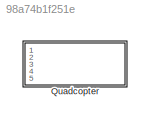
MODEL slx_98a74b1f251e
KIND model
CONFIG AbsTol = auto
CONFIG EnableMultiTasking = off
CONFIG FixedStep = auto
CONFIG MaxStep = auto
CONFIG MinStep = auto
CONFIG RelTol = 1e-3
CONFIG SampleTimeConstraint = Unconstrained
CONFIG SolverName = VariableStepAuto
CONFIG StartTime = 0.0
CONFIG StopTime = 10.0
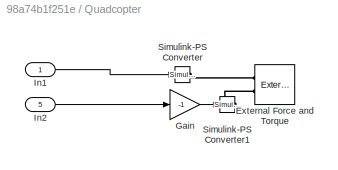
BLOCK [SubSystem] Quadcopter
  Ports = [5]
  RequestExecContextInheritance = off
BLOCK [Reference] Quadcopter/External Force and Torque  REF=sm_lib/Forces and
Torques/External Force
and Torque
  Ports = [0, 0, 0, 0, 0, 2, 1]
  SourceBlock = sm_lib/Forces and\nTorques/External Force\nand Torque
  SourceProductBaseCode = MS
  SourceType = External Force\nand Torque
BLOCK [Gain] Quadcopter/Gain
  Gain = -1
BLOCK [Inport] Quadcopter/In1
BLOCK [Inport] Quadcopter/In2
  Port = 5
BLOCK [Reference] Quadcopter/Simulink-PS Converter  REF=nesl_utility/Simulink-PS
Converter
  Ports = [1, 0, 0, 0, 0, 0, 1]
  SourceBlock = nesl_utility/Simulink-PS\nConverter
  SourceProductBaseCode = SS
  SourceType = Simulink-PS\nConverter
BLOCK [Reference] Quadcopter/Simulink-PS Converter1  REF=nesl_utility/Simulink-PS
Converter
  Ports = [1, 0, 0, 0, 0, 0, 1]
  SourceBlock = nesl_utility/Simulink-PS\nConverter
  SourceProductBaseCode = SS
  SourceType = Simulink-PS\nConverter
LINE Quadcopter/Gain:1 -> Quadcopter/Simulink-PS Converter1:1
LINE Quadcopter/In1:1 -> Quadcopter/Simulink-PS Converter:1
LINE Quadcopter/In2:1 -> Quadcopter/Gain:1
PLINE Quadcopter/External Force and Torque:LConn1 -- Quadcopter/Simulink-PS Converter:RConn1
PLINE Quadcopter/External Force and Torque:LConn2 -- Quadcopter/Simulink-PS Converter1:RConn1
